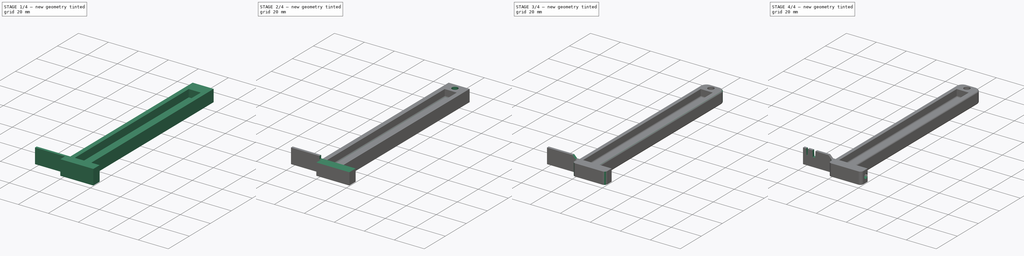
[diagram: build sequence overview — one tinted view per stage of 4, left to right]
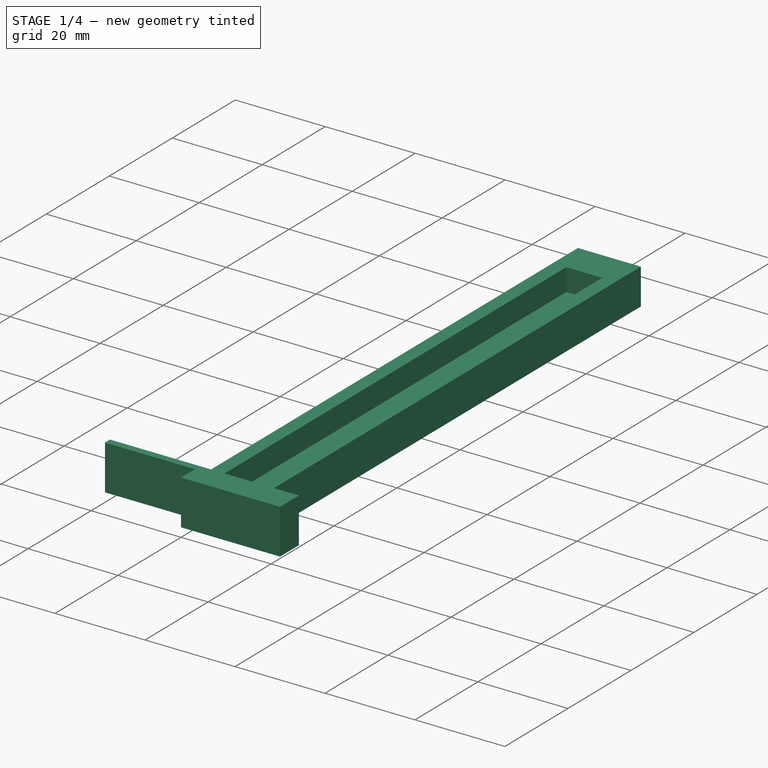
[diagram: stage 1 of 4 — iso view after this stage's code; geometry added in this stage tinted green]
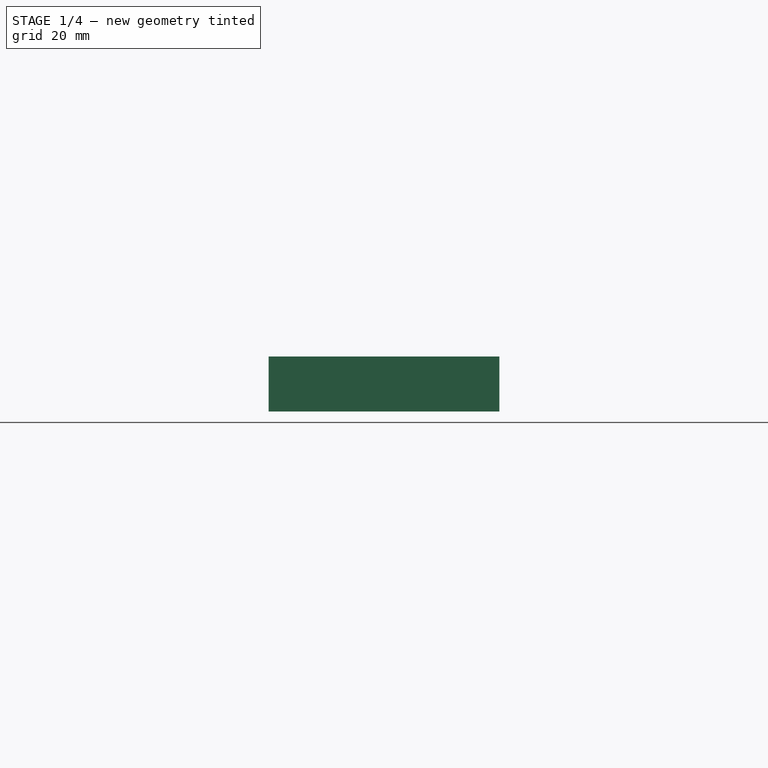
[diagram: stage 1 of 4 — front view after this stage's code; geometry added in this stage tinted green]
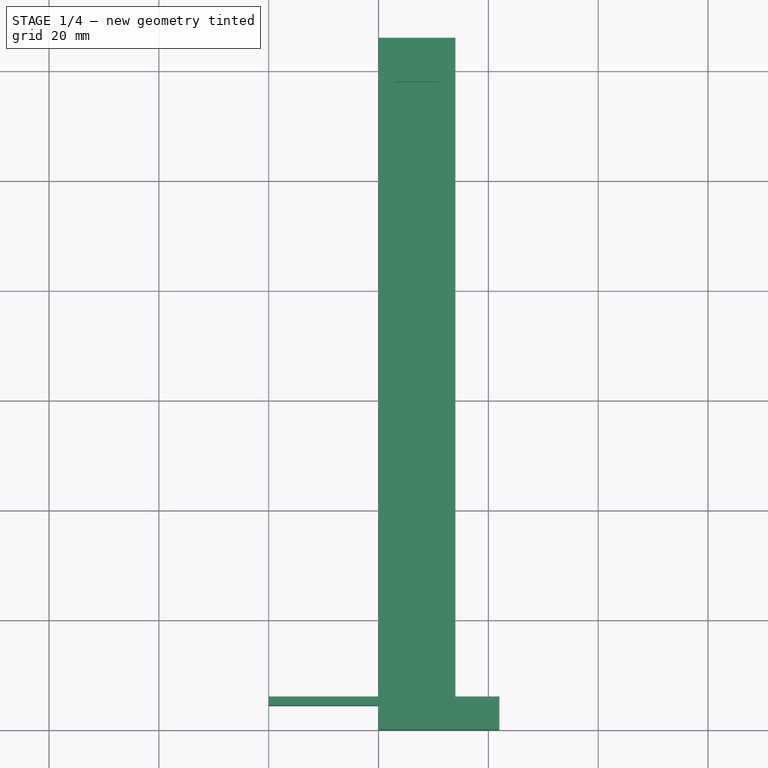
[diagram: stage 1 of 4 — top view after this stage's code; geometry added in this stage tinted green]
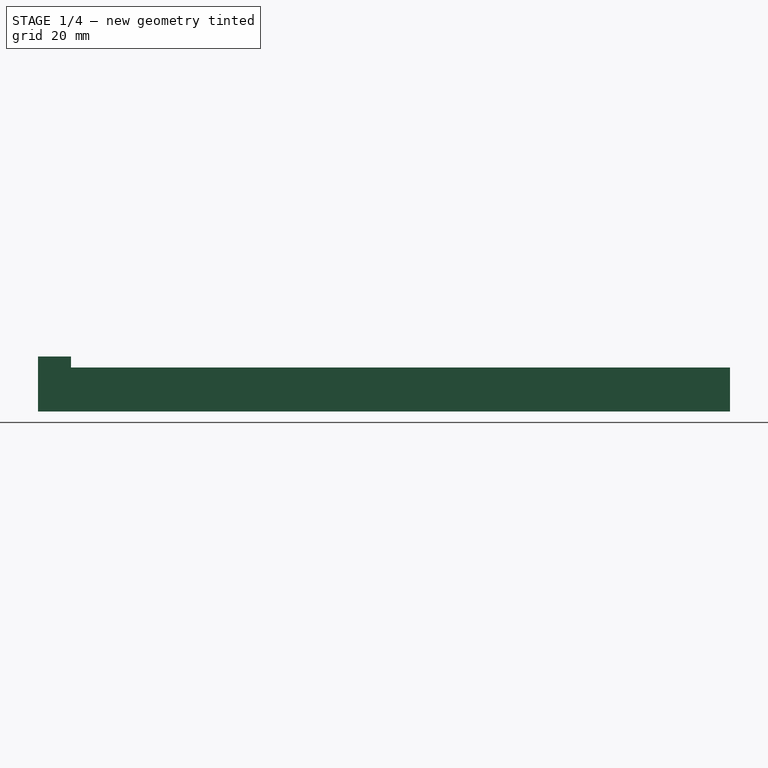
[diagram: stage 1 of 4 — right view after this stage's code; geometry added in this stage tinted green]
FCSTD DOCUMENT  (FreeCAD 0.20R29410 (Git))
Label: Tool_Part1_R4-fixed
License: All rights reserved
LicenseURL: http://en.wikipedia.org/wiki/All_rights_reserved
objects: Sketcher::SketchObject×7, PartDesign::Pocket×6, PartDesign::Plane×5, PartDesign::Fillet×5, PartDesign::Pad×1, PartDesign::Chamfer×1, PartDesign::Body×1
note: 39 computed .brp shape members not serialized (recipe doc carries the construction recipe); baked Part::Feature solids carry a one-line shape summary decoded from their .brp

FEATURE [Sketcher::SketchObject] Sketch
  FullyConstrained = true
  MapMode = 5
  Support = -> [XY_Plane]
  sketch-geometry (10):
    g0: LineSegment StartX=0 StartY=6 StartZ=0 EndX=20 EndY=6 EndZ=0
    g1: LineSegment StartX=20 StartY=6 StartZ=0 EndX=20 EndY=126 EndZ=0
    g2: LineSegment StartX=20 StartY=126 StartZ=0 EndX=34 EndY=126 EndZ=0
    g3: LineSegment StartX=34 StartY=126 StartZ=0 EndX=34 EndY=6 EndZ=0
    g4: LineSegment StartX=34 StartY=6 StartZ=0 EndX=42 EndY=6 EndZ=0
    g5: LineSegment StartX=42 StartY=6 StartZ=0 EndX=42 EndY=0 EndZ=0
    g6: LineSegment StartX=42 StartY=0 StartZ=0 EndX=20 EndY=0 EndZ=0
    g7: LineSegment StartX=20 StartY=0 StartZ=0 EndX=20 EndY=4.4 EndZ=0
    g8: LineSegment StartX=20 StartY=4.4 StartZ=0 EndX=0 EndY=4.4 EndZ=0
    g9: LineSegment StartX=0 StartY=4.4 StartZ=0 EndX=0 EndY=6 EndZ=0
  constraints (30):
    c: Horizontal(g0)
    c: Coincident(g0,g1)
    c: Vertical(g1)
    c: Coincident(g1,g2)
    c: Horizontal(g2)
    c: Coincident(g2,g3)
    c: Vertical(g3)
    c: Coincident(g3,g4)
    c: Horizontal(g4)
    c: Coincident(g4,g5)
    c: Vertical(g5)
    c: Coincident(g5,g6)
    c: Horizontal(g6)
    c: Coincident(g6,g7)
    c: Coincident(g7,g8)
    c: Horizontal(g8)
    c: Coincident(g8,g9)
    c: Coincident(g9,g0)
    c: Vertical(g9)
    c: DistanceX(g4,g4) = 8
    c: DistanceX(g0,g0) = 20
    c: PointOnObject(g8,g-2)
    c: PointOnObject(g6,g-1)
    c: DistanceX(g2,g2) = 14
    c: DistanceY(g3,g3) = 120
    c: Vertical(g7)
    c: DistanceY(g9,g9) = 1.6
    c: DistanceY(g5,g5) = 6
    c: DistanceY(g7,g7) = 4.4
    c: DistanceX(g8,g8) = 20
FEATURE [PartDesign::Pad] Pad
  Direction = (0,0,1)
  Length = 10
  Length2 = 10
  Profile = -> Sketch
  ReferenceAxis = -> Sketch [N_Axis]
  Refine = true
  Type = 0
FEATURE [PartDesign::Plane] DatumPlane  label="oberste Ebene"
  Length = 87.1167
  MapMode = 5
  Placement = pos=(0,0,10) rot=(0,0,1;0rad)
  ResizeMode = 0
  Support = -> [Pad]
  Width = 171.117
FEATURE [Sketcher::SketchObject] Sketch001
  ExternalGeometry = -> [Pad]
  FullyConstrained = true
  MapMode = 5
  Placement = pos=(0,0,10) rot=(0,0,1;0rad)
  Support = -> [DatumPlane]
  sketch-geometry (4):
    g0: LineSegment StartX=20 StartY=126 StartZ=0 EndX=34 EndY=126 EndZ=0
    g1: LineSegment StartX=34 StartY=126 StartZ=0 EndX=34 EndY=6 EndZ=0
    g2: LineSegment StartX=34 StartY=6 StartZ=0 EndX=20 EndY=6 EndZ=0
    g3: LineSegment StartX=20 StartY=6 StartZ=0 EndX=20 EndY=126 EndZ=0
  constraints (10):
    c: Coincident(g0,g1)
    c: Coincident(g1,g2)
    c: Coincident(g2,g3)
    c: Coincident(g3,g0)
    c: Horizontal(g0)
    c: Horizontal(g2)
    c: Vertical(g1)
    c: Vertical(g3)
    c: Coincident(g0,g-3)
    c: Coincident(g1,g-4)
FEATURE [PartDesign::Pocket] Pocket  label="Reduzierung Griff"
  BaseFeature = -> Pad
  Direction = (0,0,-1)
  Length = 2
  Length2 = 5
  Profile = -> Sketch001
  ReferenceAxis = -> Sketch001 [N_Axis]
  Refine = true
  Type = 0
FEATURE [PartDesign::Plane] DatumPlane001  label="Oberseite Griff"
  Length = 87.1167
  MapMode = 5
  Placement = pos=(0,0,8) rot=(0,0,1;0rad)
  ResizeMode = 0
  Support = -> [Pocket]
  Width = 171.117
FEATURE [Sketcher::SketchObject] Sketch002
  ExternalGeometry = -> [Pocket]
  FullyConstrained = true
  MapMode = 5
  Placement = pos=(0,0,8) rot=(0,0,1;0rad)
  Support = -> [DatumPlane001]
  sketch-geometry (5):
    g0: LineSegment StartX=27 StartY=126 StartZ=0 EndX=27 EndY=0 EndZ=0
    g1: LineSegment StartX=23 StartY=118 StartZ=0 EndX=31 EndY=118 EndZ=0
    g2: LineSegment StartX=31 StartY=118 StartZ=0 EndX=31 EndY=6 EndZ=0
    g3: LineSegment StartX=31 StartY=6 StartZ=0 EndX=23 EndY=6 EndZ=0
    g4: LineSegment StartX=23 StartY=6 StartZ=0 EndX=23 EndY=118 EndZ=0
  constraints (14):
    c: PointOnObject(g0,g-3)
    c: PointOnObject(g0,g-1)
    c: Symmetric(g-4,g-5,g0)
    c: Coincident(g1,g2)
    c: Coincident(g2,g3)
    c: Coincident(g3,g4)
    c: Coincident(g4,g1)
    c: Horizontal(g3)
    c: Vertical(g2)
    c: Vertical(g4)
    c: DistanceX(g1,g1) = 8
    c: Symmetric(g1,g1,g0)
    c: PointOnObject(g-5,g3)
    c: DistanceY(g2,g2) = 112
FEATURE [PartDesign::Pocket] Pocket001  label="Vertiefung Griff"
  BaseFeature = -> Pocket
  Direction = (0,0,-1)
  Length = 5
  Length2 = 5
  Profile = -> Sketch002
  ReferenceAxis = -> Sketch002 [N_Axis]
  Refine = true
  Type = 0
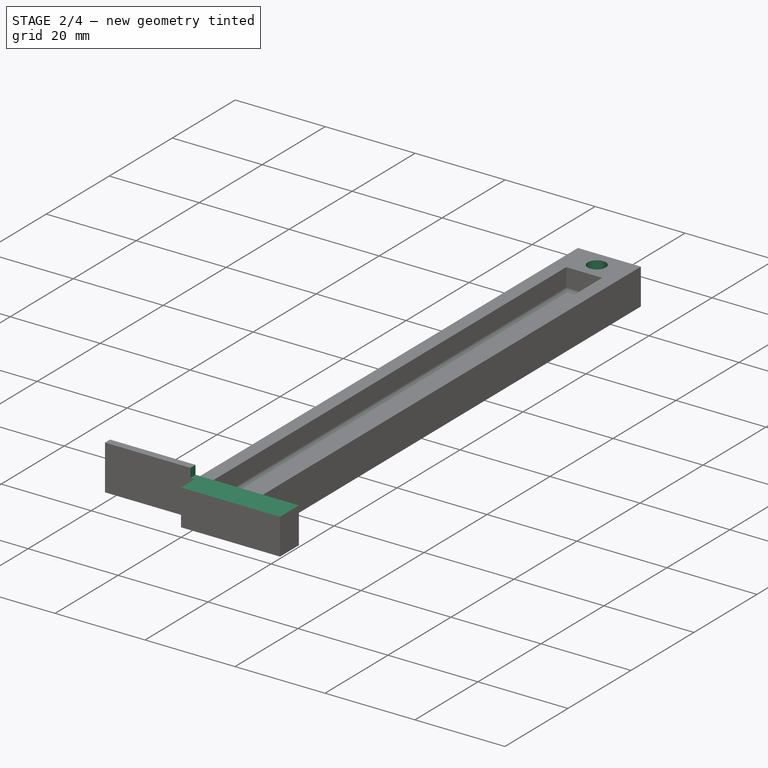
[diagram: stage 2 of 4 — iso view after this stage's code; geometry added in this stage tinted green]
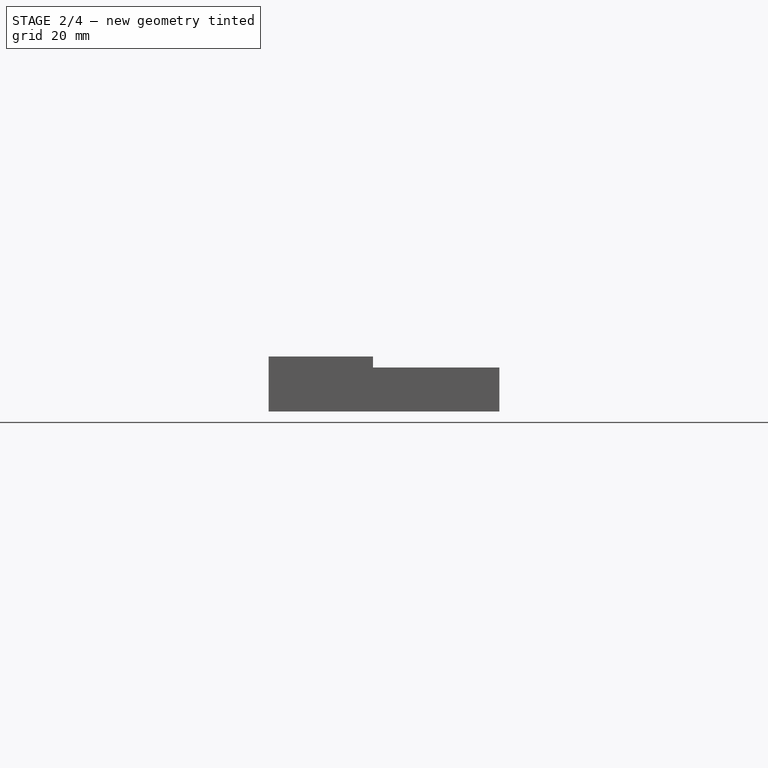
[diagram: stage 2 of 4 — front view after this stage's code; geometry added in this stage tinted green]
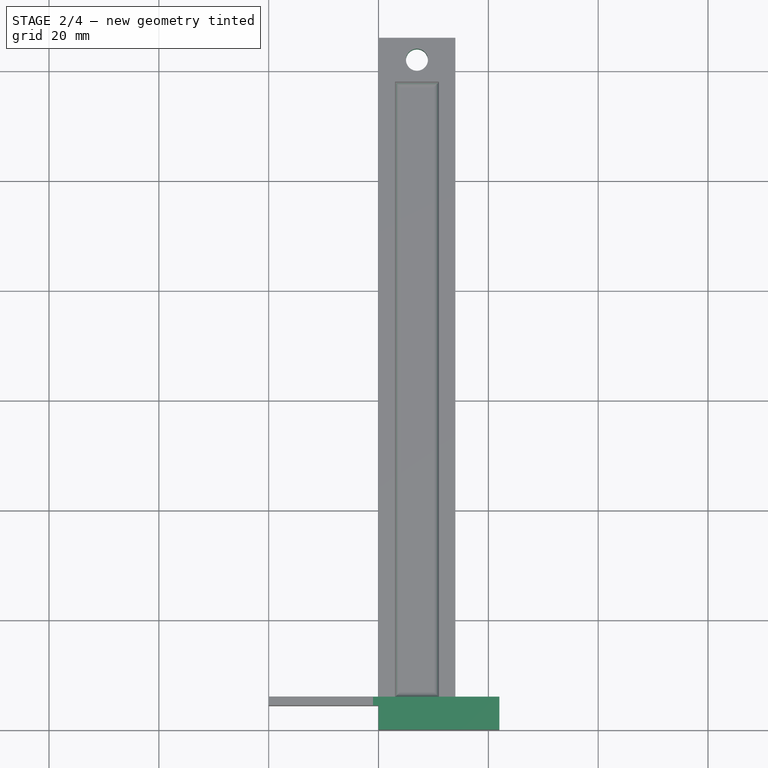
[diagram: stage 2 of 4 — top view after this stage's code; geometry added in this stage tinted green]
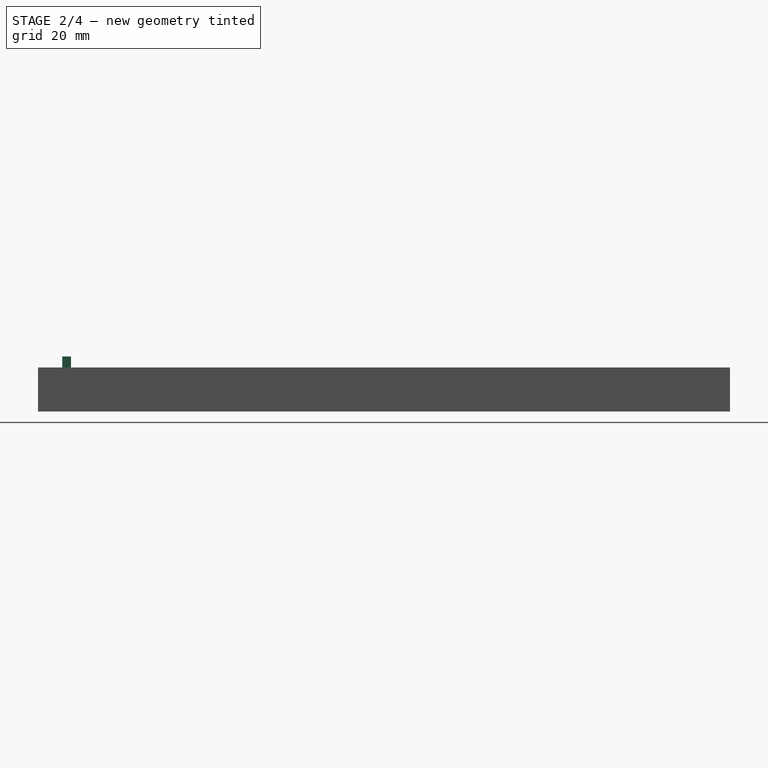
[diagram: stage 2 of 4 — right view after this stage's code; geometry added in this stage tinted green]
FEATURE [PartDesign::Plane] DatumPlane002  label="Oberseite Messkopf"
  Length = 87.1167
  MapMode = 5
  Placement = pos=(0,0,10) rot=(0,0,1;0rad)
  ResizeMode = 0
  Support = -> [Pocket001]
  Width = 171.117
FEATURE [Sketcher::SketchObject] Sketch003
  ExternalGeometry = -> [Pocket001]
  FullyConstrained = true
  MapMode = 5
  Placement = pos=(0,0,10) rot=(0,0,1;0rad)
  Support = -> [DatumPlane002]
  sketch-geometry (4):
    g0: LineSegment StartX=42 StartY=6 StartZ=0 EndX=19 EndY=6 EndZ=0
    g1: LineSegment StartX=19 StartY=6 StartZ=0 EndX=19 EndY=0 EndZ=0
    g2: LineSegment StartX=19 StartY=0 StartZ=0 EndX=42 EndY=0 EndZ=0
    g3: LineSegment StartX=42 StartY=0 StartZ=0 EndX=42 EndY=6 EndZ=0
  constraints (11):
    c: Coincident(g0,g1)
    c: Coincident(g1,g2)
    c: Coincident(g2,g3)
    c: Coincident(g3,g0)
    c: Horizontal(g0)
    c: Horizontal(g2)
    c: Vertical(g1)
    c: Vertical(g3)
    c: Coincident(g0,g-3)
    c: PointOnObject(g1,g-1)
    c: DistanceX(g2,g2) = 23
FEATURE [PartDesign::Pocket] Pocket002  label="Reduzierung Messkopf"
  BaseFeature = -> Pocket001
  Direction = (0,0,-1)
  Length = 2
  Length2 = 5
  Profile = -> Sketch003
  ReferenceAxis = -> Sketch003 [N_Axis]
  Refine = true
  Type = 0
FEATURE [Sketcher::SketchObject] Sketch004
  ExternalGeometry = -> [Pocket002]
  FullyConstrained = true
  MapMode = 5
  Placement = pos=(0,0,8) rot=(0,0,1;0rad)
  Support = -> [DatumPlane001]
  sketch-geometry (2):
    g0: Circle CenterX=27 CenterY=122 CenterZ=0 NormalX=0 NormalY=0 NormalZ=1 AngleXU=0 Radius=2
    g1: LineSegment StartX=27 StartY=126 StartZ=0 EndX=27 EndY=118 EndZ=0
  constraints (6):
    c: Diameter(g0) = 4
    c: PointOnObject(g1,g-3)
    c: PointOnObject(g1,g-4)
    c: Symmetric(g-3,g-3,g1)
    c: PointOnObject(g0,g1)
    c: DistanceY(g0,g1) = 4
FEATURE [PartDesign::Pocket] Pocket003  label="Befestigungsloch"
  BaseFeature = -> Pocket002
  Direction = (0,0,-1)
  Length = 5
  Length2 = 5
  Profile = -> Sketch004
  ReferenceAxis = -> Sketch004 [N_Axis]
  Refine = true
  Type = 1
FEATURE [PartDesign::Fillet] Fillet
  Base = -> Pocket003 [Face20]
  BaseFeature = -> Pocket003
  Radius = 1
  Refine = true
  SupportTransform = false
  UseAllEdges = false
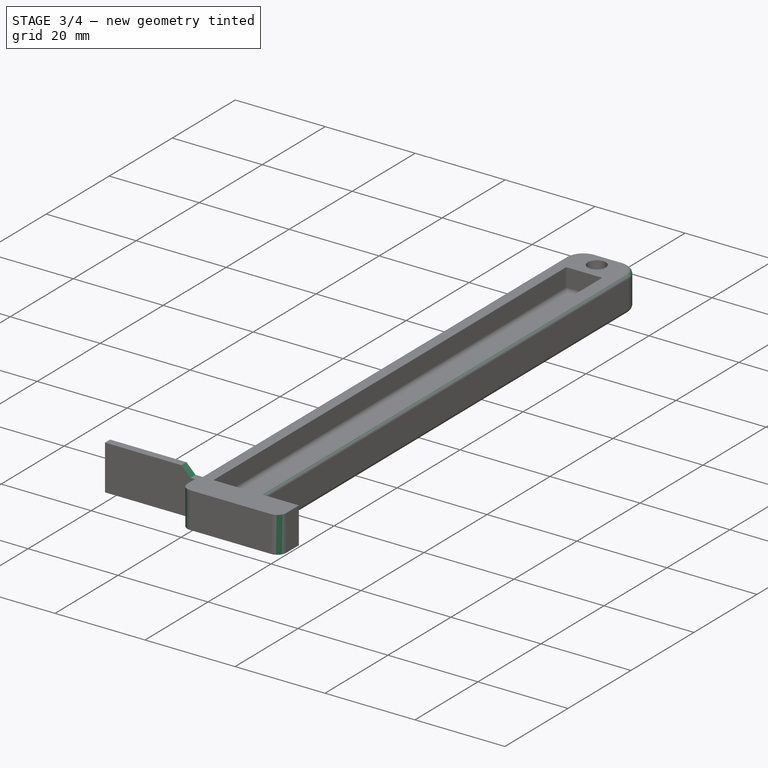
[diagram: stage 3 of 4 — iso view after this stage's code; geometry added in this stage tinted green]
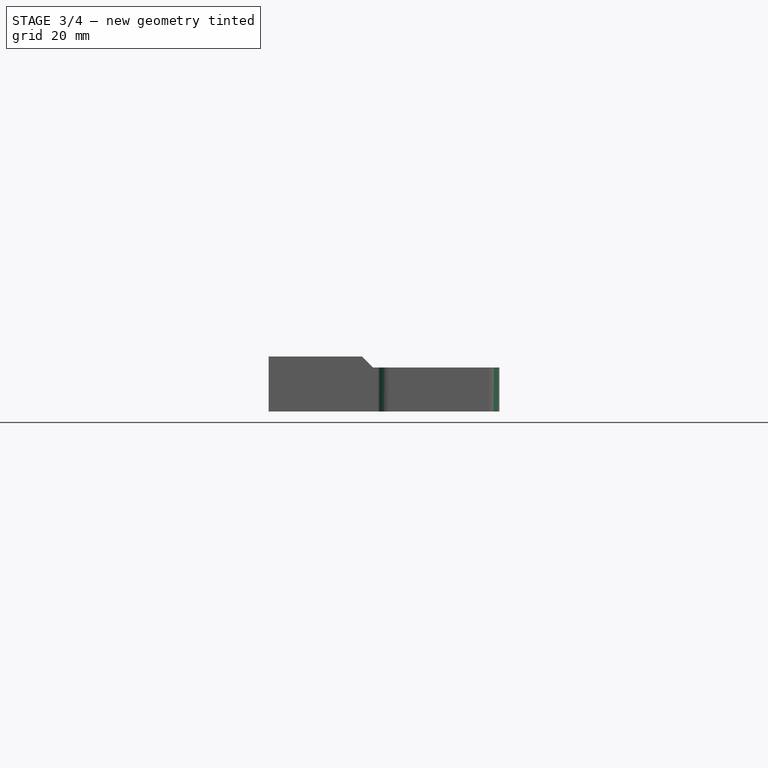
[diagram: stage 3 of 4 — front view after this stage's code; geometry added in this stage tinted green]
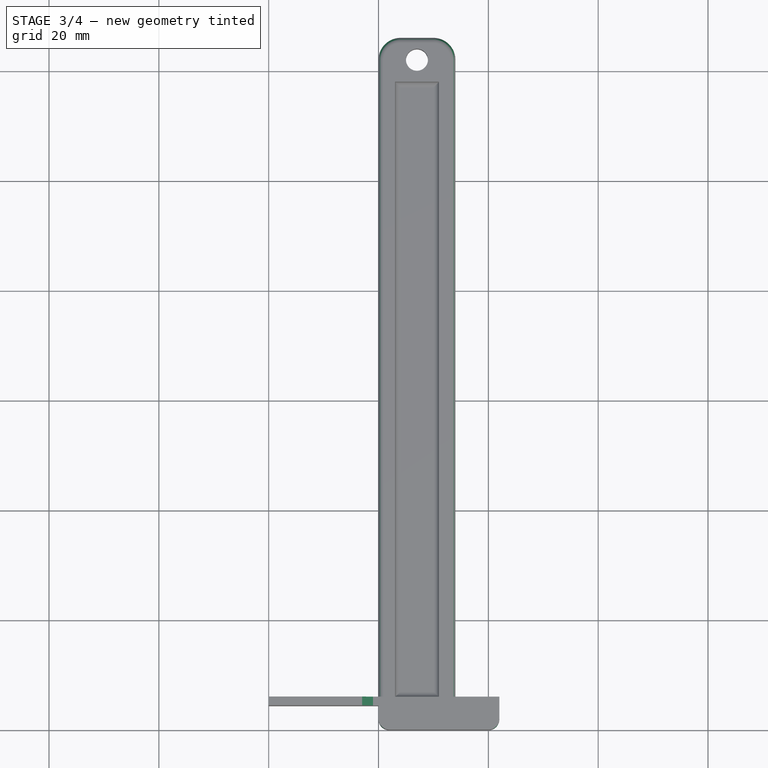
[diagram: stage 3 of 4 — top view after this stage's code; geometry added in this stage tinted green]
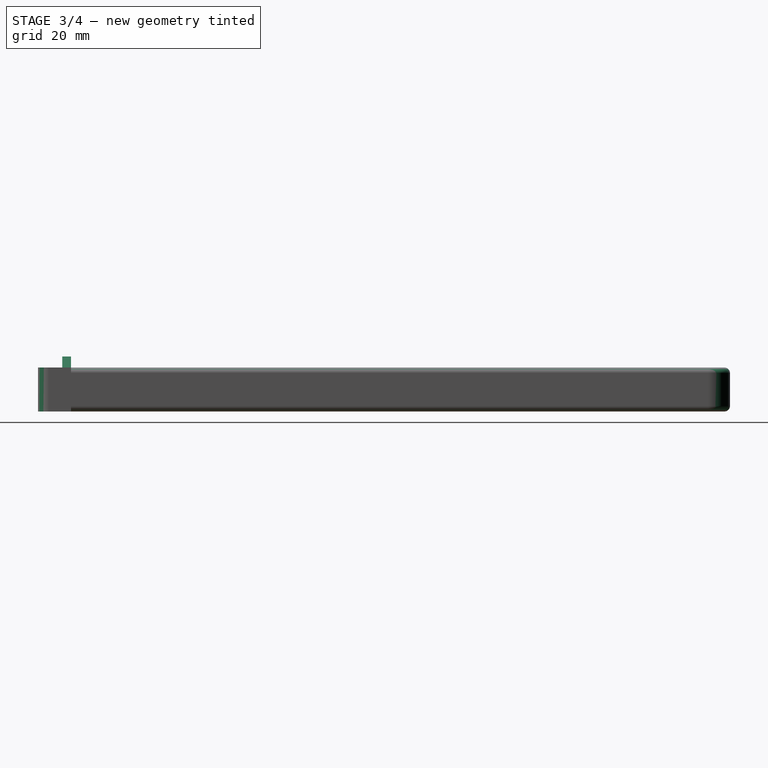
[diagram: stage 3 of 4 — right view after this stage's code; geometry added in this stage tinted green]
FEATURE [PartDesign::Fillet] Fillet001
  Base = -> Fillet [Edge34,Edge33]
  BaseFeature = -> Fillet
  Radius = 4
  Refine = true
  SupportTransform = false
  UseAllEdges = false
FEATURE [PartDesign::Fillet] Fillet002
  Base = -> Fillet001 [Edge4,Edge5,Edge27,Edge25]
  BaseFeature = -> Fillet001
  Radius = 1
  Refine = true
  SupportTransform = false
  UseAllEdges = false
FEATURE [PartDesign::Chamfer] Chamfer
  Angle = 45
  Base = -> Fillet002 [Edge30]
  BaseFeature = -> Fillet002
  ChamferType = 0
  FlipDirection = false
  Refine = true
  Size = 1.99
  Size2 = 1
  SupportTransform = false
  UseAllEdges = false
FEATURE [PartDesign::Fillet] Fillet003
  Base = -> Chamfer [Edge59,Edge62]
  BaseFeature = -> Chamfer
  Radius = 2
  Refine = true
  SupportTransform = false
  UseAllEdges = false
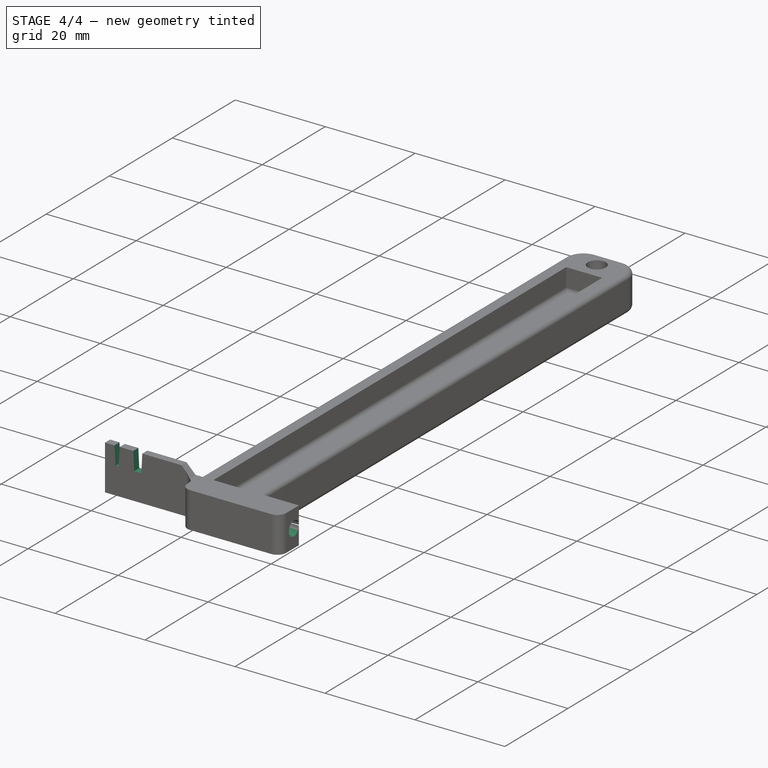
[diagram: stage 4 of 4 — iso view after this stage's code; geometry added in this stage tinted green]
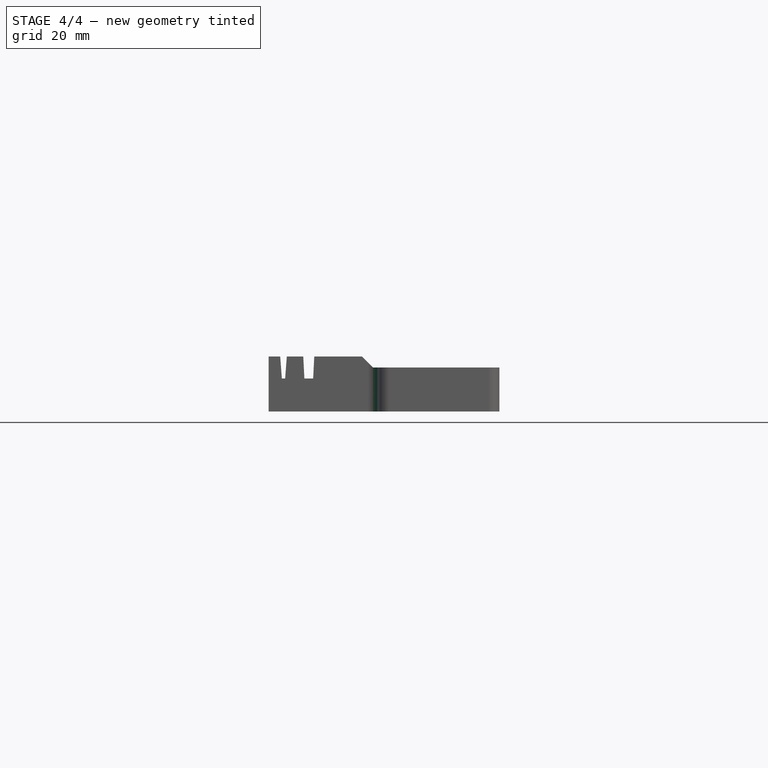
[diagram: stage 4 of 4 — front view after this stage's code; geometry added in this stage tinted green]
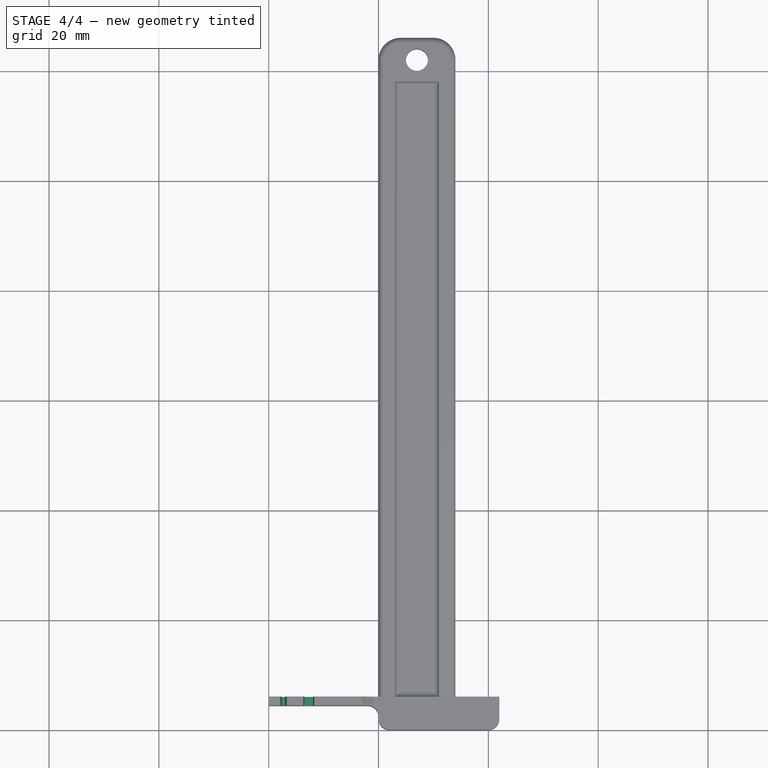
[diagram: stage 4 of 4 — top view after this stage's code; geometry added in this stage tinted green]
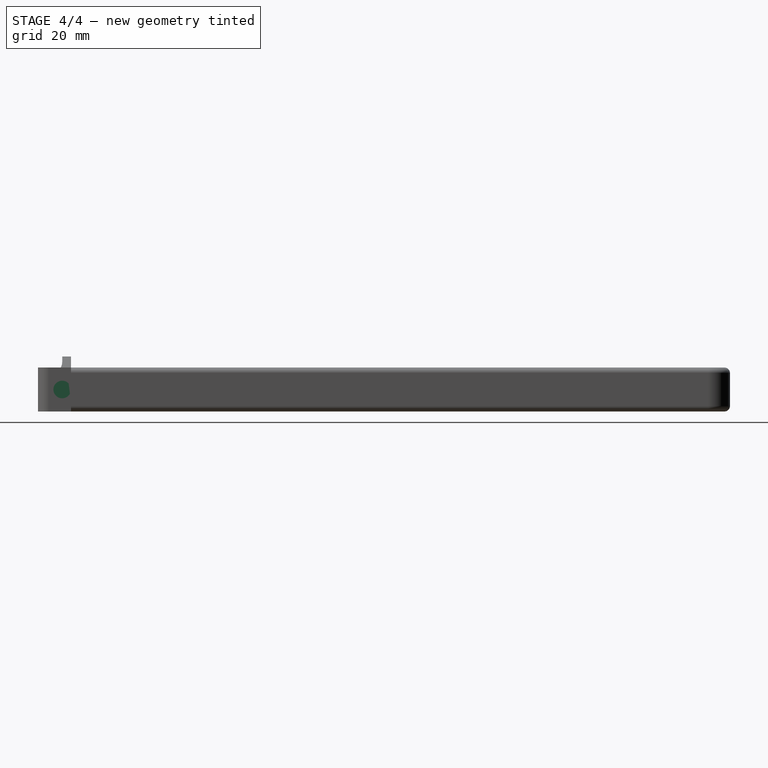
[diagram: stage 4 of 4 — right view after this stage's code; geometry added in this stage tinted green]
FEATURE [PartDesign::Fillet] Fillet004
  Base = -> Fillet003 [Edge24]
  BaseFeature = -> Fillet003
  Radius = 2
  Refine = true
  SupportTransform = false
  UseAllEdges = false
FEATURE [PartDesign::Plane] DatumPlane003  label="Seite Biegefläche"
  Length = 78.5758
  MapMode = 5
  Placement = pos=(0,6,0) rot=(0,0.707107,0.707107;3.14159rad)
  ResizeMode = 0
  Support = -> [Fillet004]
  Width = 61.5758
FEATURE [Sketcher::SketchObject] Sketch005
  ExternalGeometry = -> [Fillet004]
  FullyConstrained = true
  MapMode = 5
  Placement = pos=(0,6,0) rot=(0,0.707107,0.707107;3.14159rad)
  Support = -> [DatumPlane003]
  sketch-geometry (11):
    g0: LineSegment StartX=-3.3 StartY=10 StartZ=0 EndX=-2.1 EndY=10 EndZ=0
    g1: LineSegment StartX=-2.1 StartY=10 StartZ=0 EndX=-2.4 EndY=6 EndZ=0
    g2: LineSegment StartX=-2.4 StartY=6 StartZ=0 EndX=-3 EndY=6 EndZ=0
    g3: LineSegment StartX=-3 StartY=6 StartZ=0 EndX=-3.3 EndY=10 EndZ=0
    g4: LineSegment StartX=-8.3 StartY=10 StartZ=0 EndX=-6.3 EndY=10 EndZ=0
    g5: LineSegment StartX=-6.3 StartY=10 StartZ=0 EndX=-6.5 EndY=6 EndZ=0
    g6: LineSegment StartX=-6.5 StartY=6 StartZ=0 EndX=-8.1 EndY=6 EndZ=0
    g7: LineSegment StartX=-8.1 StartY=6 StartZ=0 EndX=-8.3 EndY=10 EndZ=0
    g8: LineSegment StartX=-8.1 StartY=6 StartZ=0 EndX=0 EndY=6 EndZ=0
    g9: LineSegment StartX=-7.3 StartY=10 StartZ=0 EndX=-7.3 EndY=6 EndZ=0
    g10: LineSegment StartX=-2.7 StartY=10 StartZ=0 EndX=-2.7 EndY=6 EndZ=0
  constraints (31):
    c: Horizontal(g0)
    c: Coincident(g0,g1)
    c: Coincident(g1,g2)
    c: Coincident(g2,g3)
    c: Coincident(g3,g0)
    c: Horizontal(g4)
    c: Coincident(g4,g5)
    c: Coincident(g5,g6)
    c: Coincident(g6,g7)
    c: Coincident(g7,g4)
    c: PointOnObject(g-3,g0)
    c: PointOnObject(g-3,g4)
    c: Coincident(g8,g6)
    c: Horizontal(g8)
    c: PointOnObject(g8,g-2)
    c: DistanceY(g8,g-3) = 4
    c: PointOnObject(g8,g2)
    c: PointOnObject(g9,g4)
    c: PointOnObject(g9,g6)
    c: PointOnObject(g10,g0)
    c: PointOnObject(g10,g2)
    c: Symmetric(g4,g4,g9)
    c: Symmetric(g0,g0,g10)
    c: DistanceX(g2,g1) = 0.6
    c: DistanceX(g6,g5) = 1.6
    c: Symmetric(g6,g5,g9)
    c: DistanceX(g4,g4) = 2
    c: Symmetric(g2,g1,g10)
    c: DistanceX(g0,g0) = 1.2
    c: DistanceX(g0,g-3) = 2.1
    c: DistanceX(g4,g0) = 3
FEATURE [PartDesign::Pocket] Pocket004  label="Biegelöcher"
  BaseFeature = -> Fillet004
  Direction = (0,-1,2e-16)
  Length = 5
  Length2 = 5
  Profile = -> Sketch005
  ReferenceAxis = -> Sketch005 [N_Axis]
  Refine = true
  Type = 1
FEATURE [PartDesign::Plane] DatumPlane004  label="Aufnahmefläche Gewindeeinsatz"
  Length = 168.378
  MapMode = 5
  Placement = pos=(42,0,0) rot=(0.57735,0.57735,0.57735;2.0944rad)
  ResizeMode = 0
  Support = -> [Pocket004]
  Width = 67.3781
FEATURE [Sketcher::SketchObject] Sketch006
  ExternalGeometry = -> [Pocket004]
  FullyConstrained = true
  MapMode = 5
  Placement = pos=(42,0,0) rot=(0.57735,0.57735,0.57735;2.0944rad)
  Support = -> [DatumPlane004]
  sketch-geometry (2):
    g0: LineSegment StartX=6 StartY=4 StartZ=0 EndX=0 EndY=4 EndZ=0
    g1: Circle CenterX=4.4 CenterY=4 CenterZ=0 NormalX=0 NormalY=0 NormalZ=1 AngleXU=0 Radius=1.6
  constraints (6):
    c: PointOnObject(g0,g-3)
    c: PointOnObject(g0,g-2)
    c: Symmetric(g-3,g-3,g0)
    c: PointOnObject(g1,g0)
    c: Diameter(g1) = 3.2
    c: DistanceX(g1,g-3) = 1.6
FEATURE [PartDesign::Pocket] Pocket005  label="Loch Gewindeeinsatz"
  BaseFeature = -> Pocket004
  Direction = (-1,0,0)
  Length = 4.5
  Length2 = 5
  Profile = -> Sketch006
  ReferenceAxis = -> Sketch006 [N_Axis]
  Refine = true
  Type = 0
FEATURE [PartDesign::Body] Body  label="Grundkörper"
  Group = -> [Sketch,Pad,DatumPlane,Sketch001,Pocket,DatumPlane001,Sketch002,Pocket001,DatumPlane002,Sketch003,Pocket002,Sketch004,Pocket003,Fillet,Fillet001,Fillet002,Chamfer,Fillet003,Fillet004,DatumPlane003,Sketch005,Pocket004,DatumPlane004,Sketch006,Pocket005]
  Origin = -> Origin
  Tip = -> Pocket005
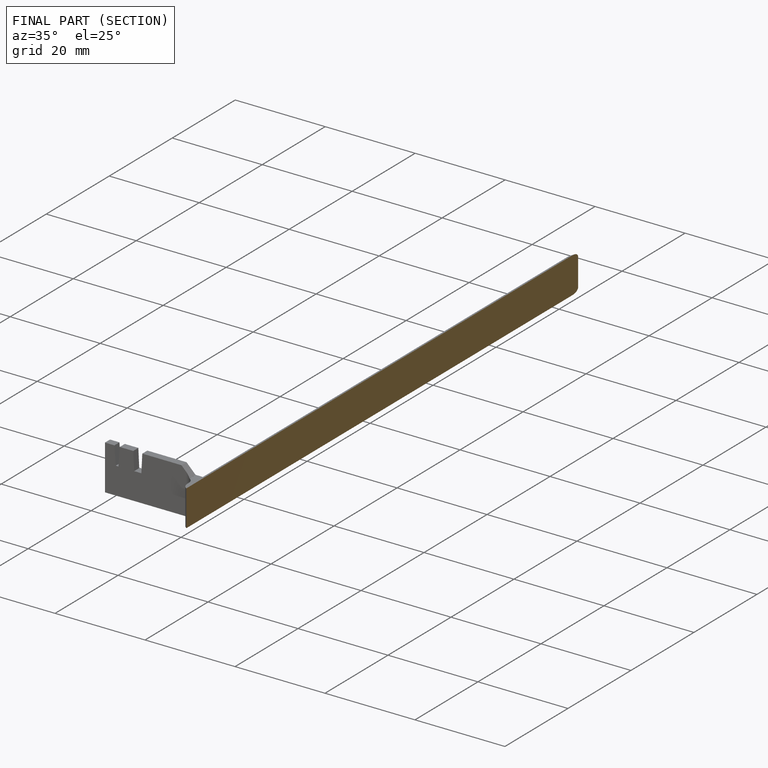
[diagram: finished part — half-section view (interior)]
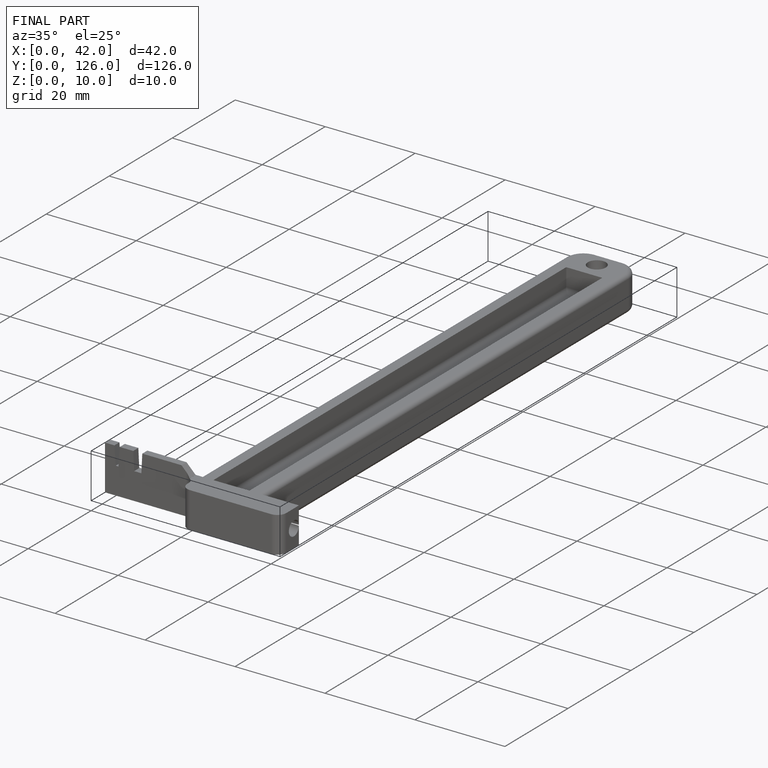
[diagram: finished part — iso view with bounding-box wireframe]
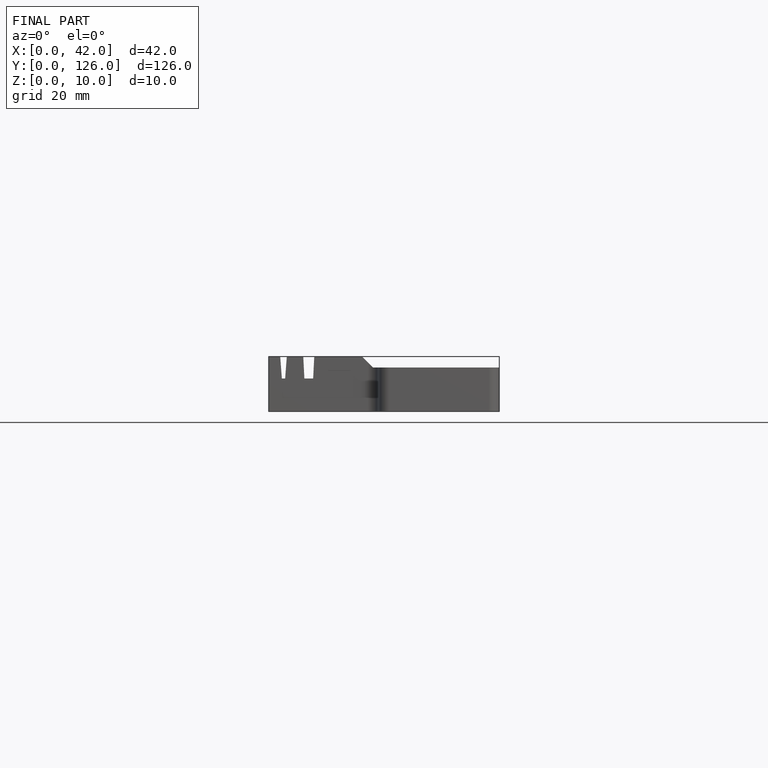
[diagram: finished part — front view with bounding-box wireframe]
